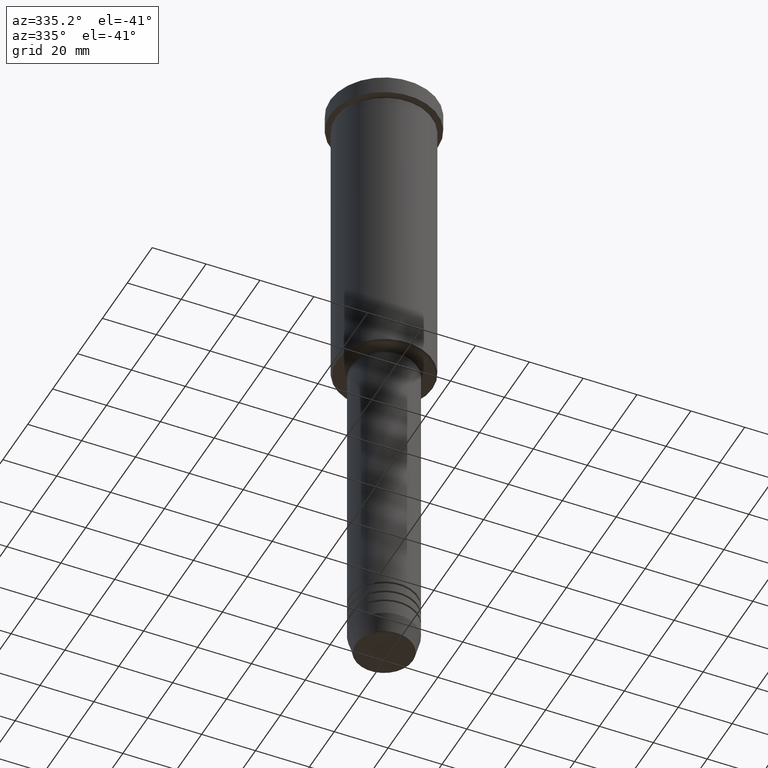
[diagram: clean part render]
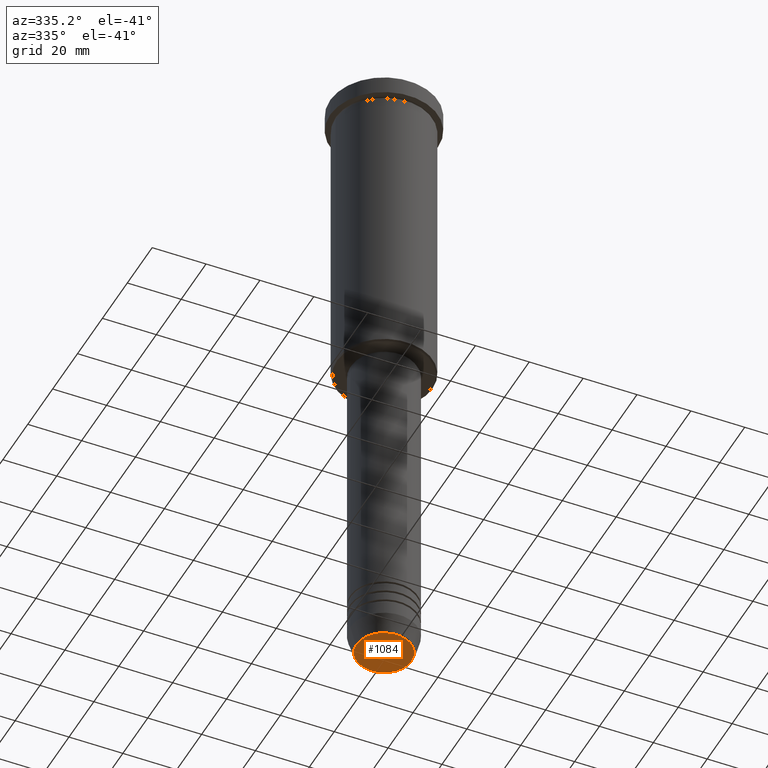
[diagram: same view with one face highlighted and labeled with its STEP entity id]
A machine part, auxiliary view. The second image highlights one B-rep face of the part: STEP entity #1084.
In plain terms, the highlighted planar face has unit normal (0, -0, 1).
Its self-contained STEP definition (entity closure, byte-faithful):
#5 = EDGE_CURVE ( 'NONE', #602, #976, #790, .T. ) ;
#20 = DIRECTION ( 'NONE',  ( 0.000000000000000000, -0.000000000000000000, 1.000000000000000000 ) ) ;
#107 = ORIENTED_EDGE ( 'NONE', *, *, #811, .T. ) ;
#246 = CIRCLE ( 'NONE', #502, 10.24069215899266538 ) ;
#315 = EDGE_LOOP ( 'NONE', ( #964, #107 ) ) ;
#348 = CARTESIAN_POINT ( 'NONE',  ( -10.24069215899266538, 1.283696036640842967E-15, -240.0000000000000000 ) ) ;
#418 = CARTESIAN_POINT ( 'NONE',  ( 0.000000000000000000, 0.000000000000000000, -240.0000000000000000 ) ) ;
#502 = AXIS2_PLACEMENT_3D ( 'NONE', #418, #866, #788 ) ;
#557 = CARTESIAN_POINT ( 'NONE',  ( 10.24069215899266538, 0.000000000000000000, -240.0000000000000000 ) ) ;
#602 = VERTEX_POINT ( 'NONE', #557 ) ;
#652 = DIRECTION ( 'NONE',  ( 1.000000000000000000, 0.000000000000000000, 0.000000000000000000 ) ) ;
#788 = DIRECTION ( 'NONE',  ( 1.000000000000000000, 0.000000000000000000, 0.000000000000000000 ) ) ;
#790 = CIRCLE ( 'NONE', #883, 10.24069215899266538 ) ;
#811 = EDGE_CURVE ( 'NONE', #976, #602, #246, .T. ) ;
#812 = DIRECTION ( 'NONE',  ( 0.000000000000000000, 0.000000000000000000, -1.000000000000000000 ) ) ;
#818 = DIRECTION ( 'NONE',  ( 1.000000000000000000, 0.000000000000000000, 0.000000000000000000 ) ) ;
#835 = FACE_OUTER_BOUND ( 'NONE', #315, .T. ) ;
#866 = DIRECTION ( 'NONE',  ( 0.000000000000000000, 0.000000000000000000, -1.000000000000000000 ) ) ;
#883 = AXIS2_PLACEMENT_3D ( 'NONE', #1153, #812, #818 ) ;
#964 = ORIENTED_EDGE ( 'NONE', *, *, #5, .T. ) ;
#976 = VERTEX_POINT ( 'NONE', #348 ) ;
#1084 = ADVANCED_FACE ( 'NONE', ( #835 ), #1118, .F. ) ;
#1097 = CARTESIAN_POINT ( 'NONE',  ( 0.000000000000000000, 0.000000000000000000, -240.0000000000000000 ) ) ;
#1118 = PLANE ( 'NONE',  #1155 ) ;
#1153 = CARTESIAN_POINT ( 'NONE',  ( 0.000000000000000000, 0.000000000000000000, -240.0000000000000000 ) ) ;
#1155 = AXIS2_PLACEMENT_3D ( 'NONE', #1097, #20, #652 ) ;